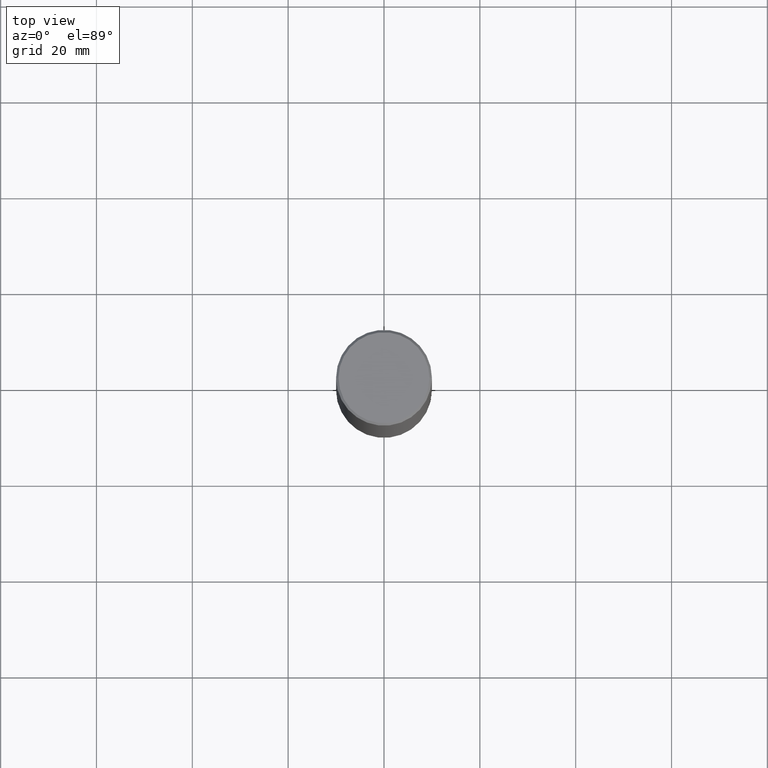
[diagram: clean part render]
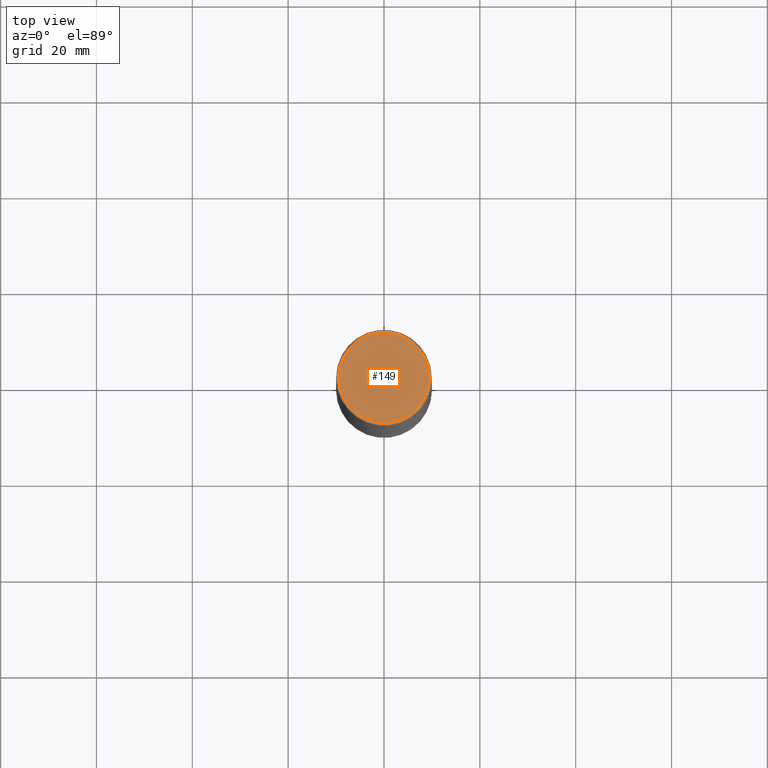
[diagram: same view with one face highlighted and labeled with its STEP entity id]
A machine part, top view. The second image highlights one B-rep face of the part: STEP entity #149.
In plain terms, the highlighted planar face has unit normal (0, -0, -1).
Its self-contained STEP definition (entity closure, byte-faithful):
#9 = CARTESIAN_POINT ( 'NONE',  ( -1.670162262936351711E-45, 2.384549072608715520E-31, 6.829619984160658046E-17 ) ) ;
#11 = DIRECTION ( 'NONE',  ( -2.445468806185136597E-29, 3.491481338843145583E-15, 1.000000000000000000 ) ) ;
#41 = DIRECTION ( 'NONE',  ( 1.000000000000000000, -6.982962677686266711E-15, 4.877734241229875126E-29 ) ) ;
#54 = ORIENTED_EDGE ( 'NONE', *, *, #127, .T. ) ;
#70 = DIRECTION ( 'NONE',  ( 1.000000000000000000, -6.982962677686266711E-15, 4.877734241229875126E-29 ) ) ;
#82 = AXIS2_PLACEMENT_3D ( 'NONE', #100, #398, #70 ) ;
#87 = VERTEX_POINT ( 'NONE', #294 ) ;
#91 = ORIENTED_EDGE ( 'NONE', *, *, #166, .T. ) ;
#100 = CARTESIAN_POINT ( 'NONE',  ( -1.670162262936351711E-45, 2.384549072608715520E-31, 6.829619984160658046E-17 ) ) ;
#122 = CIRCLE ( 'NONE', #82, 0.3737000000000000322 ) ;
#127 = EDGE_CURVE ( 'NONE', #87, #277, #392, .T. ) ;
#133 = PLANE ( 'NONE',  #383 ) ;
#149 = ADVANCED_FACE ( 'NONE', ( #242 ), #133, .F. ) ;
#166 = EDGE_CURVE ( 'NONE', #277, #87, #122, .T. ) ;
#179 = CARTESIAN_POINT ( 'NONE',  ( -0.3737000000000000322, 2.644447966039789058E-15, 6.829619984158820247E-17 ) ) ;
#205 = DIRECTION ( 'NONE',  ( -1.000000000000000000, 6.982962677686265922E-15, -4.876176775795935793E-29 ) ) ;
#242 = FACE_OUTER_BOUND ( 'NONE', #309, .T. ) ;
#270 = DIRECTION ( 'NONE',  ( 2.438088387897960049E-29, -3.491481338843145188E-15, -1.000000000000000000 ) ) ;
#277 = VERTEX_POINT ( 'NONE', #179 ) ;
#294 = CARTESIAN_POINT ( 'NONE',  ( 0.3737000000000000322, -2.667287895133368753E-15, 6.829619984162503241E-17 ) ) ;
#303 = CARTESIAN_POINT ( 'NONE',  ( 2.609533152651357803E-15, 0.3737000000000000322, -1.270618476404880419E-15 ) ) ;
#309 = EDGE_LOOP ( 'NONE', ( #91, #54 ) ) ;
#343 = AXIS2_PLACEMENT_3D ( 'NONE', #9, #11, #41 ) ;
#383 = AXIS2_PLACEMENT_3D ( 'NONE', #303, #270, #205 ) ;
#392 = CIRCLE ( 'NONE', #343, 0.3737000000000000322 ) ;
#398 = DIRECTION ( 'NONE',  ( -2.445468806185136597E-29, 3.491481338843145583E-15, 1.000000000000000000 ) ) ;